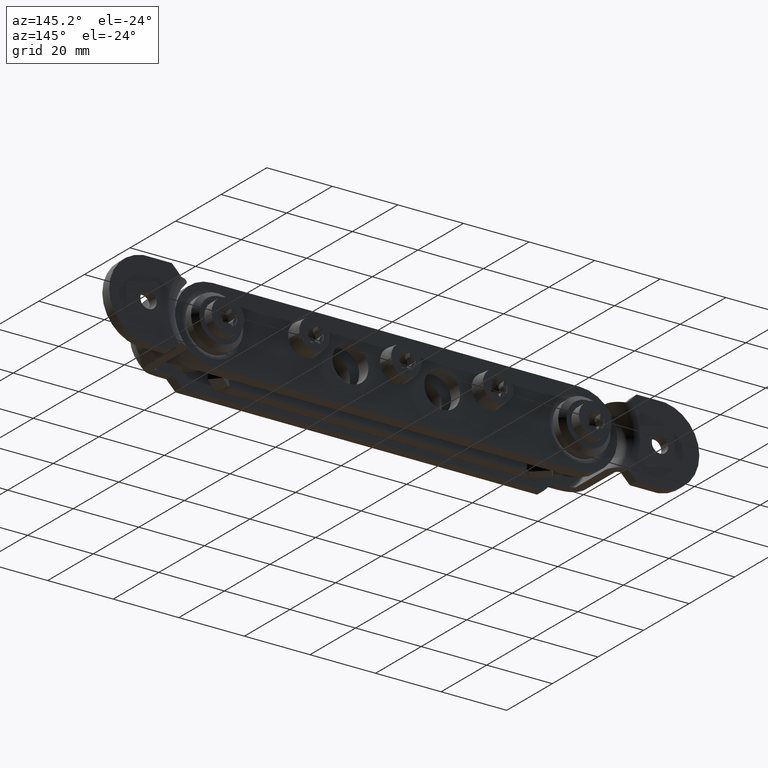
[diagram: clean part render]
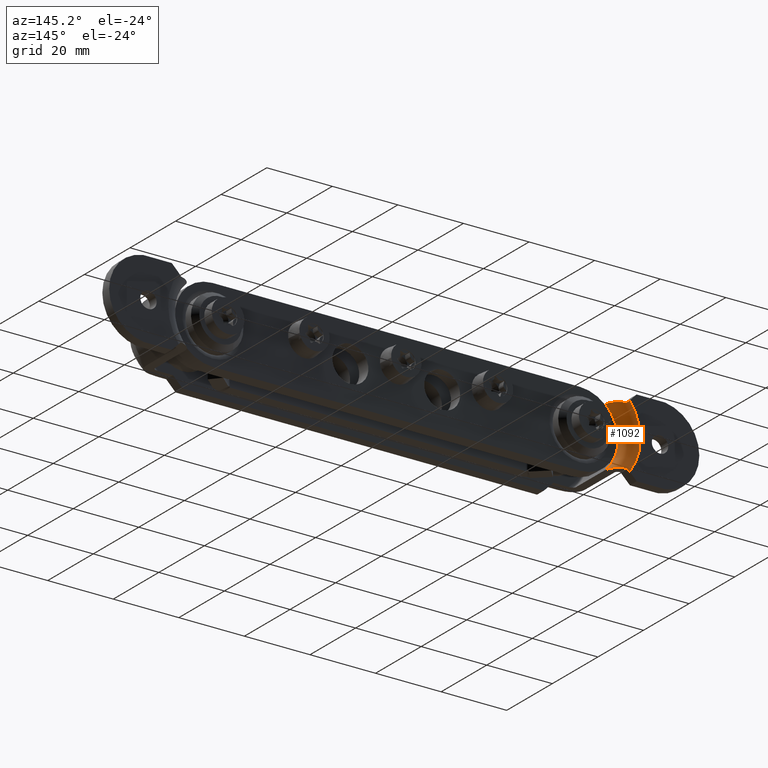
[diagram: same view with one face highlighted and labeled with its STEP entity id]
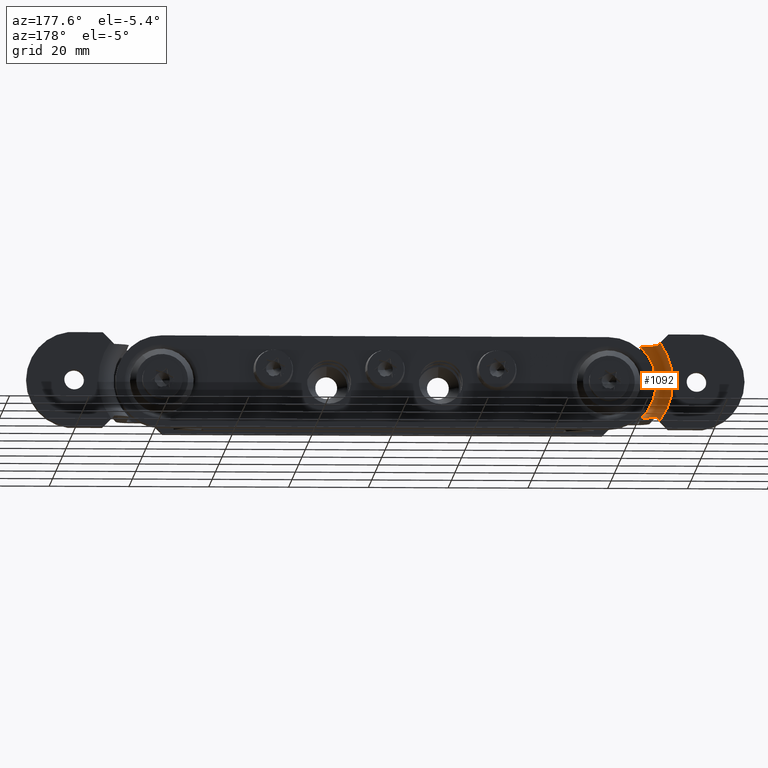
[diagram: same view with one face highlighted and labeled with its STEP entity id]
A machine part, auxiliary view. The second image highlights one B-rep face of the part: STEP entity #1092.
A second angle (auxiliary view) of the same face is appended — the face is thin or edge-on in the first view.
In plain terms, the highlighted toroidal blend (fillet) surface has major radius 16.5 mm and minor (blend) radius 4 mm.
Its self-contained STEP definition (entity closure, byte-faithful):
#105 = CARTESIAN_POINT ( 'NONE',  ( -67.99999999999997158, 20.84661142107295007, -9.000000000000001776 ) ) ;
#115 = CARTESIAN_POINT ( 'NONE',  ( -68.25787577455251665, 20.94927234370961955, 9.257875774552543291 ) ) ;
#128 = CARTESIAN_POINT ( 'NONE',  ( -64.17467578644873072, 17.00000280040921297, 8.999999999999998224 ) ) ;
#175 = CARTESIAN_POINT ( 'NONE',  ( -64.17467578644873072, 17.00000280040921297, 8.999999999999998224 ) ) ;
#199 = CARTESIAN_POINT ( 'NONE',  ( -64.17467578644873072, 17.00000280040921297, -8.999999999999998224 ) ) ;
#201 = CARTESIAN_POINT ( 'NONE',  ( -68.78527199505931833, 21.00000000000011724, 9.785271995059339645 ) ) ;
#356 = CARTESIAN_POINT ( 'NONE',  ( -67.53284671570985154, 20.72370841365938787, -9.000000000000001776 ) ) ;
#400 = CARTESIAN_POINT ( 'NONE',  ( -65.26095846486273899, 19.37750221460411737, -9.000000000000000000 ) ) ;
#444 = CARTESIAN_POINT ( 'NONE',  ( -65.09058405374237566, 19.19933818434314787, -9.000000000000000000 ) ) ;
#552 = EDGE_LOOP ( 'NONE', ( #2735, #8240, #5367, #3912, #5526, #3709 ) ) ;
#1037 = EDGE_CURVE ( 'NONE', #8433, #6768, #5359, .T. ) ;
#1081 = CARTESIAN_POINT ( 'NONE',  ( -64.65118848250646977, 18.61914767885723165, -9.000000000000001776 ) ) ;
#1092 = ADVANCED_FACE ( 'NONE', ( #8675 ), #2748, .T. ) ;
#1170 = CARTESIAN_POINT ( 'NONE',  ( -65.80245331666499453, 19.86577989397900978, -9.000000000000003553 ) ) ;
#1233 = B_SPLINE_CURVE_WITH_KNOTS ( 'NONE', 3,
 ( #6380, #4171, #7801, #105 ),
 .UNSPECIFIED., .F., .F.,
 ( 4, 4 ),
 ( 0.003561287374589938281, 0.004675162083449521666 ),
 .UNSPECIFIED. ) ;
#1286 = AXIS2_PLACEMENT_3D ( 'NONE', #3268, #3907, #3221 ) ;
#1326 = EDGE_CURVE ( 'NONE', #5536, #8433, #2410, .T. ) ;
#1677 = VERTEX_POINT ( 'NONE', #6749 ) ;
#1682 = EDGE_CURVE ( 'NONE', #6768, #1677, #1233, .T. ) ;
#1709 = DIRECTION ( 'NONE',  ( -0.000000000000000000, -1.000000000000000000, -0.000000000000000000 ) ) ;
#1758 = CARTESIAN_POINT ( 'NONE',  ( -66.20249008964026416, 20.13302662261079234, -9.000000000000005329 ) ) ;
#1798 = CARTESIAN_POINT ( 'NONE',  ( -66.85106329332997177, 20.46147829233893845, -9.000000000000001776 ) ) ;
#1989 = CARTESIAN_POINT ( 'NONE',  ( -66.85124495489034757, 20.46150265739735374, 9.000000000000003553 ) ) ;
#2336 = CARTESIAN_POINT ( 'NONE',  ( -68.78527199505931833, 21.00000000000011724, 9.785271995059339645 ) ) ;
#2410 = B_SPLINE_CURVE_WITH_KNOTS ( 'NONE', 3,
 ( #6351, #115, #7169, #201 ),
 .UNSPECIFIED., .F., .F.,
 ( 4, 4 ),
 ( 2.896864330006655295E-07, 0.001120831905103476193 ),
 .UNSPECIFIED. ) ;
#2515 = CARTESIAN_POINT ( 'NONE',  ( -67.99999999999997158, 20.84661142107295007, -9.000000000000001776 ) ) ;
#2601 = CARTESIAN_POINT ( 'NONE',  ( -67.07668570014867271, 20.55875690415725643, -8.999999999999998224 ) ) ;
#2698 = CARTESIAN_POINT ( 'NONE',  ( -66.42112392679979394, 20.24381480524471044, 9.000000000000001776 ) ) ;
#2735 = ORIENTED_EDGE ( 'NONE', *, *, #1326, .F. ) ;
#2742 = CARTESIAN_POINT ( 'NONE',  ( -67.99999999999997158, 20.84661142107295007, 9.000000000000001776 ) ) ;
#2748 = TOROIDAL_SURFACE ( 'NONE', #7828, 16.50000000000000000, 4.000000000000000000 ) ;
#2835 = CARTESIAN_POINT ( 'NONE',  ( -64.64885923323198824, 18.61489251042007709, 9.000000000000003553 ) ) ;
#2903 = VERTEX_POINT ( 'NONE', #175 ) ;
#3177 = CARTESIAN_POINT ( 'NONE',  ( -55.49999999999999289, 21.00000000000000000, 0.000000000000000000 ) ) ;
#3221 = DIRECTION ( 'NONE',  ( 0.000000000000000000, 0.000000000000000000, 1.000000000000000000 ) ) ;
#3268 = CARTESIAN_POINT ( 'NONE',  ( -55.49999999999999289, 17.00000000000000000, 0.000000000000000000 ) ) ;
#3414 = CARTESIAN_POINT ( 'NONE',  ( -64.42320522824219609, 18.18738110967687405, 9.000000000000001776 ) ) ;
#3499 = CARTESIAN_POINT ( 'NONE',  ( -68.78527199505931833, 21.00000000000000000, -9.785271995059334316 ) ) ;
#3709 = ORIENTED_EDGE ( 'NONE', *, *, #1037, .F. ) ;
#3907 = DIRECTION ( 'NONE',  ( 0.000000000000000000, 1.000000000000000000, 0.000000000000000000 ) ) ;
#3912 = ORIENTED_EDGE ( 'NONE', *, *, #7061, .F. ) ;
#4150 = CARTESIAN_POINT ( 'NONE',  ( -65.25739947787843676, 19.37387548387005864, 9.000000000000001776 ) ) ;
#4171 = CARTESIAN_POINT ( 'NONE',  ( -68.52244552739222172, 21.00000000000000000, -9.522445527392243037 ) ) ;
#4192 = CARTESIAN_POINT ( 'NONE',  ( -64.17467603399661868, 17.24538241378149195, 9.000000000000001776 ) ) ;
#4455 = CIRCLE ( 'NONE', #1286, 12.50000000000000000 ) ;
#4463 = DIRECTION ( 'NONE',  ( 0.000000000000000000, 1.000000000000000000, 0.000000000000000000 ) ) ;
#4556 = CARTESIAN_POINT ( 'NONE',  ( -64.20632508626111701, 17.48278231892906831, -9.000000000000003553 ) ) ;
#4740 = CARTESIAN_POINT ( 'NONE',  ( -65.61626421820113819, 19.69829603459553624, 9.000000000000003553 ) ) ;
#4958 = B_SPLINE_CURVE_WITH_KNOTS ( 'NONE', 3,
 ( #128, #4192, #8278, #8908, #3414, #2835, #8191, #6958, #4150, #4740, #6910, #5597, #2698, #1989, #5417, #7598, #6191, #2742 ),
 .UNSPECIFIED., .F., .F.,
 ( 4, 2, 2, 2, 2, 2, 2, 2, 4 ),
 ( 0.02703015999736453970, 0.02775447090611812481, 0.02847878181487170993, 0.02920309272362529504, 0.02992740363237887669, 0.03065171454113246180, 0.03137602544988604691, 0.03210033635863963203, 0.03282464726739321714 ),
 .UNSPECIFIED. ) ;
#5070 = AXIS2_PLACEMENT_3D ( 'NONE', #3177, #1709, #6668 ) ;
#5281 = CARTESIAN_POINT ( 'NONE',  ( -64.17467578644873072, 17.00000280040921297, -8.999999999999998224 ) ) ;
#5359 = CIRCLE ( 'NONE', #5070, 16.50000000000000000 ) ;
#5367 = ORIENTED_EDGE ( 'NONE', *, *, #8505, .F. ) ;
#5399 = CARTESIAN_POINT ( 'NONE',  ( -67.99999999999997158, 20.84661142107295007, 9.000000000000001776 ) ) ;
#5417 = CARTESIAN_POINT ( 'NONE',  ( -67.07278394842360569, 20.55716203771883599, 9.000000000000001776 ) ) ;
#5526 = ORIENTED_EDGE ( 'NONE', *, *, #1682, .F. ) ;
#5536 = VERTEX_POINT ( 'NONE', #5399 ) ;
#5597 = CARTESIAN_POINT ( 'NONE',  ( -66.21252876327575621, 20.12181305256311958, 9.000000000000003553 ) ) ;
#5867 = CARTESIAN_POINT ( 'NONE',  ( -64.33096232618949273, 17.95787206477898934, -9.000000000000003553 ) ) ;
#6038 = B_SPLINE_CURVE_WITH_KNOTS ( 'NONE', 3,
 ( #2515, #7460, #356, #2601, #1798, #1758, #1170, #400, #444, #7272, #1081, #6629, #5867, #4556, #8638, #5281 ),
 .UNSPECIFIED., .F., .F.,
 ( 4, 2, 2, 2, 2, 2, 2, 4 ),
 ( 0.02266943965658084481, 0.02339448191285991088, 0.02411952416913897695, 0.02556960868169715073, 0.02629465093797625150, 0.02701969319425535226, 0.02774473545053445303, 0.02846977770681355380 ),
 .UNSPECIFIED. ) ;
#6191 = CARTESIAN_POINT ( 'NONE',  ( -67.76406328922737998, 20.79200273951769518, 9.000000000000003553 ) ) ;
#6351 = CARTESIAN_POINT ( 'NONE',  ( -67.99999999999997158, 20.84661142107295007, 9.000000000000001776 ) ) ;
#6380 = CARTESIAN_POINT ( 'NONE',  ( -68.78527199505931833, 21.00000000000000000, -9.785271995059334316 ) ) ;
#6629 = CARTESIAN_POINT ( 'NONE',  ( -64.42185174443321216, 18.18497390192303698, -9.000000000000003553 ) ) ;
#6668 = DIRECTION ( 'NONE',  ( 0.000000000000000000, 0.000000000000000000, 1.000000000000000000 ) ) ;
#6715 = CARTESIAN_POINT ( 'NONE',  ( -55.49999999999999289, 17.00000000000000000, 0.000000000000000000 ) ) ;
#6749 = CARTESIAN_POINT ( 'NONE',  ( -67.99999999999997158, 20.84661142107295007, -9.000000000000001776 ) ) ;
#6768 = VERTEX_POINT ( 'NONE', #3499 ) ;
#6910 = CARTESIAN_POINT ( 'NONE',  ( -65.80956915613575120, 19.84884818703830689, 9.000000000000001776 ) ) ;
#6958 = CARTESIAN_POINT ( 'NONE',  ( -65.09039944120770826, 19.19916558341812518, 9.000000000000003553 ) ) ;
#7061 = EDGE_CURVE ( 'NONE', #1677, #7723, #6038, .T. ) ;
#7169 = CARTESIAN_POINT ( 'NONE',  ( -68.51966337674488727, 21.00000000000003553, 9.519663376744912142 ) ) ;
#7226 = DIRECTION ( 'NONE',  ( 0.000000000000000000, 0.000000000000000000, 1.000000000000000000 ) ) ;
#7272 = CARTESIAN_POINT ( 'NONE',  ( -64.78657247789325879, 18.82080049966417334, -9.000000000000000000 ) ) ;
#7460 = CARTESIAN_POINT ( 'NONE',  ( -67.76460192452876186, 20.79212740923761160, -9.000000000000001776 ) ) ;
#7598 = CARTESIAN_POINT ( 'NONE',  ( -67.52868498292852451, 20.72238423419400988, 9.000000000000003553 ) ) ;
#7723 = VERTEX_POINT ( 'NONE', #199 ) ;
#7801 = CARTESIAN_POINT ( 'NONE',  ( -68.25632735162233189, 20.94865591307812736, -9.256327351622358535 ) ) ;
#7828 = AXIS2_PLACEMENT_3D ( 'NONE', #6715, #4463, #7226 ) ;
#8191 = CARTESIAN_POINT ( 'NONE',  ( -64.78597985577154361, 18.82000518642655607, 9.000000000000001776 ) ) ;
#8240 = ORIENTED_EDGE ( 'NONE', *, *, #8261, .F. ) ;
#8261 = EDGE_CURVE ( 'NONE', #2903, #5536, #4958, .T. ) ;
#8278 = CARTESIAN_POINT ( 'NONE',  ( -64.20736773789226959, 17.48859393515320804, 9.000000000000003553 ) ) ;
#8433 = VERTEX_POINT ( 'NONE', #2336 ) ;
#8505 = EDGE_CURVE ( 'NONE', #7723, #2903, #4455, .T. ) ;
#8638 = CARTESIAN_POINT ( 'NONE',  ( -64.17467603083093763, 17.24224444283976609, -9.000000000000001776 ) ) ;
#8675 = FACE_OUTER_BOUND ( 'NONE', #552, .T. ) ;
#8908 = CARTESIAN_POINT ( 'NONE',  ( -64.33282643580872673, 17.96309715048817779, 9.000000000000000000 ) ) ;